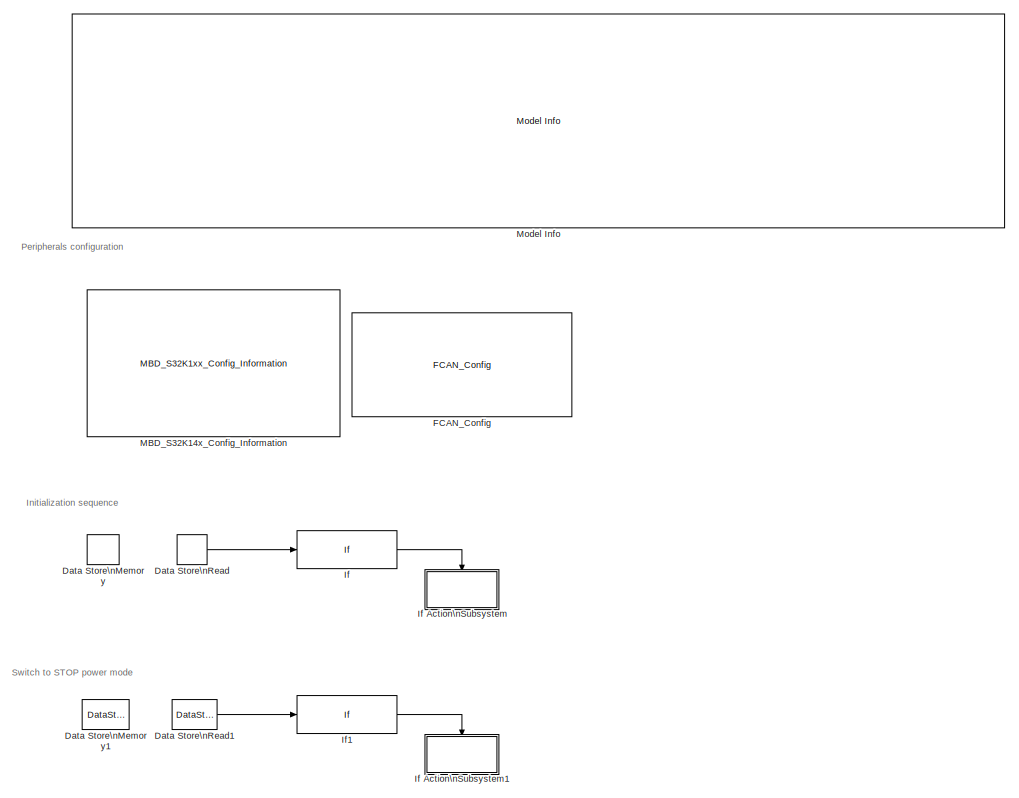
[diagram: root canvas - part 1/2, full width, top band]
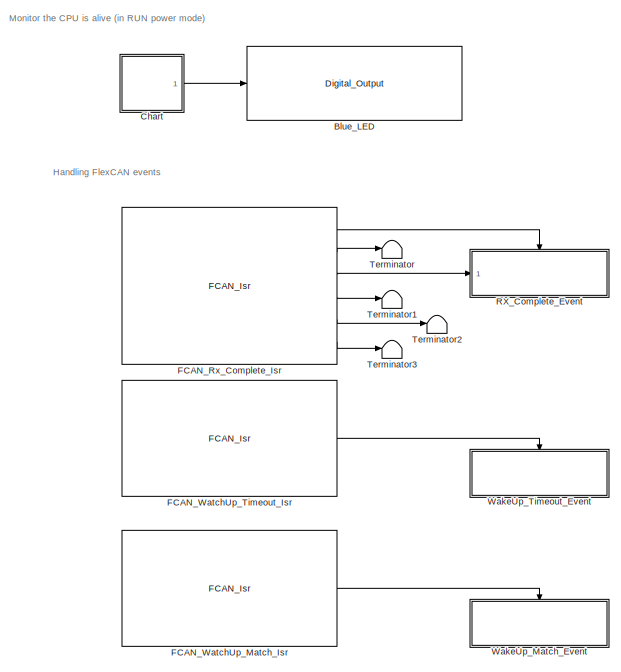
[diagram: root canvas - part 2/2, bottom left region]
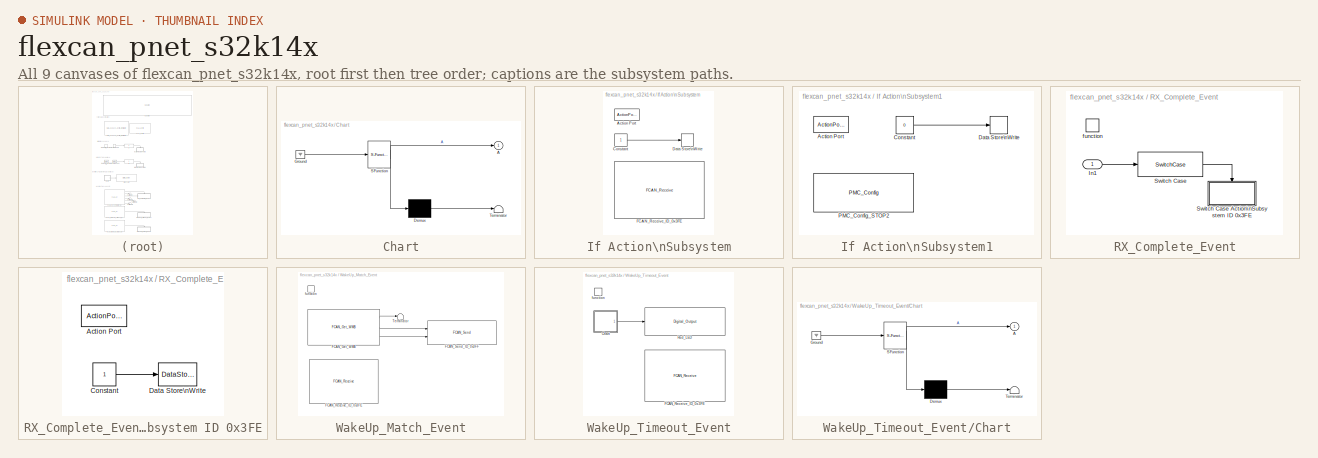
[diagram: thumbnail index - all 9 canvases of the model, root first then tree order]
MODEL flexcan_pnet_s32k14x
KIND model
CONFIG InitFcn = mbd_s32k_consistency_checks(bdroot(gcs));
BLOCK [Reference] Blue_LED  REF=mbd_s32k1xx_ec_toolbox/GPIO Blocks/Digital_Output
  Ports = [1]
  SID = 319
  SourceBlock = mbd_s32k1xx_ec_toolbox/GPIO Blocks/Digital_Output
  SourceType = gpio_s32k_output
  drive_strength = Low
  gpio_pin = PTD0: [PTD0 | Port D I/O]
  init_val = Low
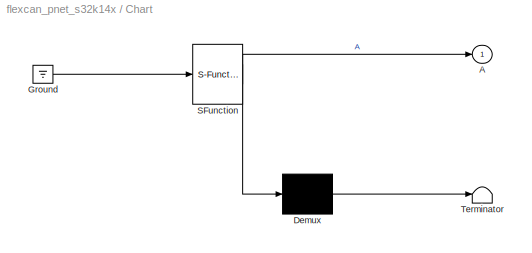
BLOCK [SubSystem] Chart
  ErrorFcn = Stateflow.Translate.translate
  PermitHierarchicalResolution = ExplicitOnly
  Ports = [0, 1]
  RequestExecContextInheritance = off
  SFBlockType = Chart
  SID = 318
  TreatAsAtomicUnit = on
  Variant = off
BLOCK [Outport] Chart/ A
  IconDisplay = Port number
  SID = 318::6
BLOCK [Demux] Chart/ Demux 
  Outputs = 1
  Ports = [1, 1]
  SID = 318::40
BLOCK [Ground] Chart/ Ground 
  SID = 318::42
BLOCK [S-Function] Chart/ SFunction 
  EnableBusSupport = off
  FunctionName = sf_sfun
  PortCounts = [1 2]
  Ports = [1, 2]
  SFcnIsStateOwnerBlock = off
  SFunctionDeploymentMode = off
  SID = 318::39
  Tag = Stateflow S-Function flexcan_pnet_s32k14x 1
BLOCK [Terminator] Chart/ Terminator 
  SID = 318::41
BLOCK [DataStoreMemory] Data Store\nMemory
  DataStoreName = Once
  OutDataTypeStr = uint32
  ReadBeforeWriteMsg = warning
  SID = 138
  ShowAdditionalParam = off
  WriteAfterReadMsg = warning
  WriteAfterWriteMsg = warning
BLOCK [DataStoreMemory] Data Store\nMemory1
  DataStoreName = StopFlag
  OutDataTypeStr = int32
  ReadBeforeWriteMsg = warning
  SID = 295
  ShowAdditionalParam = off
  WriteAfterReadMsg = warning
  WriteAfterWriteMsg = warning
BLOCK [DataStoreRead] Data Store\nRead
  DataStoreName = Once
  Ports = [0, 1]
  SID = 139
BLOCK [DataStoreRead] Data Store\nRead1
  DataStoreName = StopFlag
  Ports = [0, 1]
  SID = 296
BLOCK [Reference] FCAN_Config  REF=mbd_s32k1xx_ec_toolbox/Communication Blocks/CAN Blocks/FCAN_Config
  Ports = []
  Priority = 1
  SID = 2
  SourceBlock = mbd_s32k1xx_ec_toolbox/Communication Blocks/CAN Blocks/FCAN_Config
  SourceType = fcan_s32k_config
  bitrate = 500
  bitrate_adv_opts = on
  can_cbt_presdiv = 9
  can_cbt_propseg = 6
  can_cbt_pseg1 = 3
  can_cbt_pseg2 = 3
  can_cbt_rjw = 0
  can_clk_src = Peripheral clock
  can_fd_enable = off
  can_fifo_id_filter = {'0x0', '0x0', '0x0', '0x0', '0x0', '0x0', '0x0', '0x0'}
  can_fifo_id_filter_extended = off
  can_fifo_id_filter_remote = off
  can_fifo_id_format = A
  can_idfilter_extendedid = off
  can_idfilter_id1 = 0x3FD
  can_idfilter_id2 = 0x3FD
  can_idfilter_remoteframe = off
  can_idfilter_type = Match exact
  can_instance = 0
  can_match_timeout = 65535
  can_max_num_mb = 16
  can_mode = Normal mode
  can_multiple_matches_en = off
  can_num_id_filters = 8
  can_num_matches = 1
  can_payload = 8
  can_payloadfilter_dlchigh = 0
  can_payloadfilter_dlclow = 0
  can_payloadfilter_enable = off
  can_payloadfilter_payload1_b0 = 0
  can_payloadfilter_payload1_b1 = 0
  can_payloadfilter_payload1_b2 = 0
  can_payloadfilter_payload1_b3 = 0
  can_payloadfilter_payload1_b4 = 0
  can_payloadfilter_payload1_b5 = 0
  can_payloadfilter_payload1_b6 = 0
  can_payloadfilter_payload1_b7 = 0
  can_payloadfilter_payload2_b0 = 0
  can_payloadfilter_payload2_b1 = 0
  can_payloadfilter_payload2_b2 = 0
  can_payloadfilter_payload2_b3 = 0
  can_payloadfilter_payload2_b4 = 0
  can_payloadfilter_payload2_b5 = 0
  can_payloadfilter_payload2_b6 = 0
  can_payloadfilter_payload2_b7 = 0
  can_payloadfilter_type = Match exact
  can_pn_enable = on
  can_presdiv = 9
  can_propseg = 6
  can_pseg1 = 3
  can_pseg2 = 3
  can_rjw = 0
  can_rx = PTE4: [CAN0_RX | CAN Rx channel]
  can_rxfifo_enable = off
  can_timeout_en = on
  can_tx = PTE5: [CAN0_TX | CAN Tx Channel]
  can_wakeup_match = on
  can_wakeup_timeout = on
  show_adv_opts = on
BLOCK [Reference] FCAN_Rx_Complete_Isr  REF=mbd_s32k1xx_ec_toolbox/Communication Blocks/CAN Blocks/FCAN_Isr
  Ports = [0, 6]
  SID = 86
  SourceBlock = mbd_s32k1xx_ec_toolbox/Communication Blocks/CAN Blocks/FCAN_Isr
  SourceType = fcan_s32k_isr
  can_event = Rx Complete
  can_instance = 0
BLOCK [Reference] FCAN_WatchUp_Match_Isr  REF=mbd_s32k1xx_ec_toolbox/Communication Blocks/CAN Blocks/FCAN_Isr
  Ports = [0, 1]
  SID = 436
  SourceBlock = mbd_s32k1xx_ec_toolbox/Communication Blocks/CAN Blocks/FCAN_Isr
  SourceType = fcan_s32k_isr
  can_event = Wake Up Match
  can_instance = 0
BLOCK [Reference] FCAN_WatchUp_Timeout_Isr  REF=mbd_s32k1xx_ec_toolbox/Communication Blocks/CAN Blocks/FCAN_Isr
  Ports = [0, 1]
  SID = 432
  SourceBlock = mbd_s32k1xx_ec_toolbox/Communication Blocks/CAN Blocks/FCAN_Isr
  SourceType = fcan_s32k_isr
  can_event = Wake Up Timeout
  can_instance = 0
BLOCK [If] If
  IfExpression = u1 == 0
  Ports = [1, 1]
  SID = 144
  ShowElse = off
BLOCK [SubSystem] If Action\nSubsystem
  Ports = [0, 0, 0, 0, 0, 0, 0, 1]
  RequestExecContextInheritance = off
  SID = 145
  TreatAsAtomicUnit = on
  Variant = off
BLOCK [ActionPort] If Action\nSubsystem/Action Port
  SID = 147
BLOCK [Constant] If Action\nSubsystem/Constant
  OutDataTypeStr = uint32
  SID = 142
BLOCK [DataStoreWrite] If Action\nSubsystem/Data Store\nWrite
  DataStoreName = Once
  Ports = [1]
  SID = 141
BLOCK [Reference] If Action\nSubsystem/FCAN_Receive_ID_0x3FE  REF=mbd_s32k1xx_ec_toolbox/Communication Blocks/CAN Blocks/FCAN_Receive
  Ports = []
  SID = 197
  SourceBlock = mbd_s32k1xx_ec_toolbox/Communication Blocks/CAN Blocks/FCAN_Receive
  SourceType = fcan_s32k_receive
  can_extended_id = off
  can_fd_enable = off
  can_id = 3FE
  can_instance = 0
  can_is_remote = off
  can_mb_idx = 14
  can_mode = Non-blocking
  can_msg_mask = FFFFFFFF
  can_timeout_ms = 0
  can_use_rxfifo = off
  show_adv_opts = off
BLOCK [SubSystem] If Action\nSubsystem1
  Ports = [0, 0, 0, 0, 0, 0, 0, 1]
  RequestExecContextInheritance = off
  SID = 298
  TreatAsAtomicUnit = on
  Variant = off
BLOCK [ActionPort] If Action\nSubsystem1/Action Port
  SID = 299
BLOCK [Constant] If Action\nSubsystem1/Constant
  OutDataTypeStr = int32
  SID = 315
  Value = 0
BLOCK [DataStoreWrite] If Action\nSubsystem1/Data Store\nWrite
  DataStoreName = StopFlag
  Ports = [1]
  SID = 316
BLOCK [Reference] If Action\nSubsystem1/PMC_Config_STOP2  REF=mbd_s32k1xx_ec_toolbox/Core and System Blocks/PMC Blocks/PMC_Config
  Ports = []
  SID = 289
  SourceBlock = mbd_s32k1xx_ec_toolbox/Core and System Blocks/PMC Blocks/PMC_Config
  SourceType = pmc_s32k_config
  callback_after = off
  callback_before = off
  callback_before_after = off
  power_mode = Stop System clock and keep Bus clock running (STOP2)
  show_adv_opts = on
  sleep_on_exit = off
BLOCK [If] If1
  IfExpression = u1 == 1
  Ports = [1, 1]
  SID = 297
  ShowElse = off
BLOCK [Reference] MBD_S32K14x_Config_Information  REF=mbd_s32k1xx_ec_toolbox/MBD_S32K1xx_Config_Information
  ADC_PcrCheckEnDis = on
  AMMCLIB_PcrCheckEnDis = on
  CMP_PcrCheckEnDis = on
  CSEc_PcrCheckEnDis = on
  ConfigParams_PcrCheckEnDis = on
  FM_PcrCheckEnDis = on
  FTM_Dual_Edge_Inputs_PcrCheckEnDis = on
  FTM_Hall_Sensor_Inputs_PcrCheckEnDis = on
  FTM_Input_Edge_Inputs_PcrCheckEnDis = on
  FTM_PWM_PcrCheckEnDis = on
  FTM_Quadrature_Inputs_PcrCheckEnDis = on
  FlexCAN_PcrCheckEnDis = on
  FlexIO_PcrCheckEnDis = on
  GPIO_InputPcrCheckEnDis = on
  GPIO_OutputPcrCheckEnDis = on
  LIN_PcrCheckEnDis = on
  LPI2C_PcrCheckEnDis = on
  LPSPI_PcrCheckEnDis = on
  LPTMR_PcrCheckEnDis = on
  LPUART_PcrCheckEnDis = on
  ModelRef_PcrCheckEnDis = on
  PDB0_PcrCheckEnDis = on
  PIT_PcrCheckEnDis = on
  Ports = []
  Profile_PcrCheckEnDis = on
  RTC_PcrCheckEnDis = on
  SBC_PcrCheckEnDis = on
  SID = 447
  SourceBlock = mbd_s32k1xx_ec_toolbox/MBD_S32K1xx_Config_Information
  SourceType = MBDTBX_EC_S32K
  WDOG_PcrCheckEnDis = on
  config_params = []
  disp_str = Target : S32K144-64KB_SRAM\nPackage : 100-pin\nSystem clock : 80 MHz\nXTAL clock : External 8 MHz\nCompiler : IAR\nTarget Type : FLASH\nDownload Code after build : off\nStep Tick Interrupt Priority : 15
  ds_import_enable = on
  eDMA_PcrCheckEnDis = on
  gcc_target_assemble_opts = -mcpu=cortex-m4 -mthumb -mfloat-abi=hard -mfpu=fpv4-sp-d16 -g
  gcc_target_compile_opts = -mcpu=cortex-m4 -mthumb -mfloat-abi=hard -mfpu=fpv4-sp-d16 -O1 -g -gstrict-dwarf
  gcc_target_default_lcf = on
  gcc_target_link_opts = -mcpu=cortex-m4 -mthumb -mfloat-abi=hard -mfpu=fpv4-sp-d16
  gcc_target_user_lcf = S32K144_64_flash.ld
  ghs_target_assemble_opts = -cpu=cortexm4f -fpu=vfpv4_d16
  ghs_target_compile_opts = -cpu=cortexm4f -thumb -DARM_MATH_CM4 -fpu=vfpv4_d16 -fsingle -Ogeneral -Wundef -Wimplicit-int -Wshadow -Wtrigraphs --no_commons --gnu_asm -gnu99 -gdwarf-2 -G
  ghs_target_default_lcf = on
  ghs_target_link_opts = -cpu=cortexm4f -thumb -fpu=vfpv4_d16
  ghs_target_user_lcf = S32K144_64_flash.ld
  iar_target_assemble_opts = --cpu Cortex-M4F --thumb --fpu VFPv4_sp
  iar_target_compile_opts = --cpu=Cortex-M4F --thumb --fpu=VFPv4_sp -Ol -e --debug --dlib_config normal
  iar_target_default_lcf = on
  iar_target_link_opts = --no_exceptions --vfe --inline
  iar_target_user_lcf = S32K144_64_flash.icf
  mbdt_ver = 0
  mcu_steptick_prio = 15
  mcu_steptick_timer = LPIT Channel 0
  mcu_system_clock_freq = 80
  mcu_target_name = S32K144
  mcu_target_package = 100-LQFP
  mcu_target_sram_size = 64KB
  mcu_xtal_freq = External 8
  pil_download_enable = off
  pil_download_rate = 57600
  pil_opensda_drive = Custom
  pil_opensda_drive_custom = D
  pil_uart_instance = 0
  pil_uart_rx = PTA2: [LPUART0_RX | Receive]
  pil_uart_tx = PTA3: [LPUART0_TX | Transmit]
  rbl_com_port = Custom
  rbl_com_port_custom = COM1
  rbl_download_enable = off
  rbl_download_interface = OpenSDA
  rbl_restart_request = off
  rbl_start_delay = 5000000
  target_compiler = GCC
  target_memory = FLASH
BLOCK [Reference] Model Info  REF=simulink/Model-Wide\nUtilities/Model Info
  DisplayStringWithTags = Model Name: %<ModelName>\n\nDescription: %<Description>
  Frame = off
  HorizontalTextAlignment = Left
  LeftAlignmentValue = 0.02
  MaskDisplayString = Model Name: flexcan_pnet_s32k14x\\n\\nDescription: This model tests the FlexCAN Pretended Networking.\\nBlue LED (PTD0) is toggled continuosly in RUN power mode.\\nSending a message with ID 0x3FE will switch the CPU from RUN mode to STOP2. Blue LED will freeze.\\nSending a message with ID 0x3FD will wake up the CPU into RUN mode. Blue LED will resume to turn on-off.\\nOn Wake Up Match event the me...<+395ch>
  Ports = []
  SID = 74
  SourceBlock = simulink/Model-Wide\nUtilities/Model Info
  SourceProductBaseCode = SL
  SourceProductName = Simulink
  SourceType = CMBlock
BLOCK [SubSystem] RX_Complete_Event
  Ports = [1, 0, 0, 1]
  RTWSystemCode = Nonreusable function
  RequestExecContextInheritance = off
  SID = 160
  TreatAsAtomicUnit = on
  Variant = off
BLOCK [Inport] RX_Complete_Event/In1
  IconDisplay = Port number
  SID = 175
BLOCK [SwitchCase] RX_Complete_Event/Switch Case
  CaseConditions = {hex2dec('3FE')}
  Ports = [1, 1]
  SID = 90
  ShowDefaultCase = off
BLOCK [SubSystem] RX_Complete_Event/Switch Case Action\nSubsystem ID 0x3FE
  Ports = [0, 0, 0, 0, 0, 0, 0, 1]
  RequestExecContextInheritance = off
  SID = 198
  TreatAsAtomicUnit = on
  Variant = off
BLOCK [ActionPort] RX_Complete_Event/Switch Case Action\nSubsystem ID 0x3FE/Action Port
  SID = 199
BLOCK [Constant] RX_Complete_Event/Switch Case Action\nSubsystem ID 0x3FE/Constant
  OutDataTypeStr = int32
  SID = 287
BLOCK [DataStoreWrite] RX_Complete_Event/Switch Case Action\nSubsystem ID 0x3FE/Data Store\nWrite
  DataStoreName = StopFlag
  Ports = [1]
  SID = 286
BLOCK [TriggerPort] RX_Complete_Event/function
  Ports = []
  SID = 161
  StatesWhenEnabling = held
  TriggerType = function-call
  VariantControl = Variant
BLOCK [Terminator] Terminator
  SID = 394
BLOCK [Terminator] Terminator1
  SID = 393
BLOCK [Terminator] Terminator2
  SID = 392
BLOCK [Terminator] Terminator3
  SID = 446
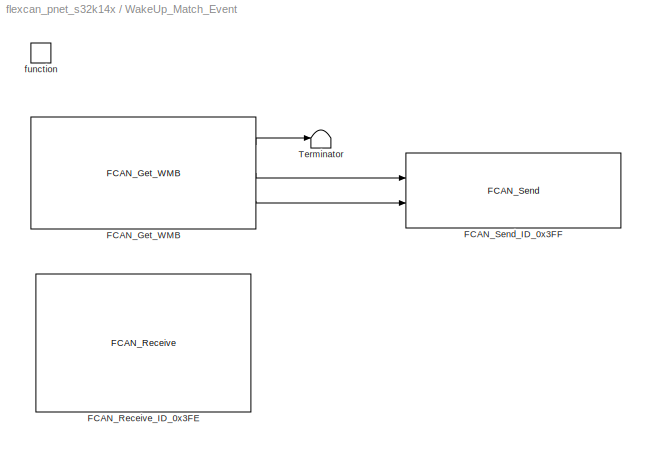
BLOCK [SubSystem] WakeUp_Match_Event
  Ports = [0, 0, 0, 1]
  RTWSystemCode = Nonreusable function
  RequestExecContextInheritance = off
  SID = 245
  TreatAsAtomicUnit = on
  Variant = off
BLOCK [Reference] WakeUp_Match_Event/FCAN_Get_WMB  REF=mbd_s32k1xx_ec_toolbox/Communication Blocks/CAN Blocks/FCAN_Get_WMB
  Ports = [0, 3]
  SID = 262
  SourceBlock = mbd_s32k1xx_ec_toolbox/Communication Blocks/CAN Blocks/FCAN_Get_WMB
  SourceType = fcan_s32k_get_wmb
  can_instance = 0
  can_wmb_idx = 0
BLOCK [Reference] WakeUp_Match_Event/FCAN_Receive_ID_0x3FE  REF=mbd_s32k1xx_ec_toolbox/Communication Blocks/CAN Blocks/FCAN_Receive
  Ports = []
  SID = 439
  SourceBlock = mbd_s32k1xx_ec_toolbox/Communication Blocks/CAN Blocks/FCAN_Receive
  SourceType = fcan_s32k_receive
  can_extended_id = off
  can_fd_enable = off
  can_id = 3FE
  can_instance = 0
  can_is_remote = off
  can_mb_idx = 14
  can_mode = Non-blocking
  can_msg_mask = FFFFFFFF
  can_timeout_ms = 0
  can_use_rxfifo = off
  show_adv_opts = off
BLOCK [Reference] WakeUp_Match_Event/FCAN_Send_ID_0x3FF  REF=mbd_s32k1xx_ec_toolbox/Communication Blocks/CAN Blocks/FCAN_Send
  Ports = [2]
  Priority = 2
  SID = 378
  SourceBlock = mbd_s32k1xx_ec_toolbox/Communication Blocks/CAN Blocks/FCAN_Send
  SourceType = fcan_s32k_send
  can_enable_brs = off
  can_extended_id = off
  can_fd_enable = off
  can_fd_padding = 0
  can_id = 3FF
  can_instance = 0
  can_is_remote = off
  can_mb_idx = 15
  can_mode = Non-blocking
  can_timeout_ms = 0
  show_adv_opts = off
BLOCK [Terminator] WakeUp_Match_Event/Terminator
  SID = 437
BLOCK [TriggerPort] WakeUp_Match_Event/function
  Ports = []
  SID = 246
  StatesWhenEnabling = held
  TriggerType = function-call
  VariantControl = Variant
BLOCK [SubSystem] WakeUp_Timeout_Event
  Ports = [0, 0, 0, 1]
  RTWSystemCode = Nonreusable function
  RequestExecContextInheritance = off
  SID = 230
  TreatAsAtomicUnit = on
  Variant = off
BLOCK [SubSystem] WakeUp_Timeout_Event/Chart
  ErrorFcn = Stateflow.Translate.translate
  PermitHierarchicalResolution = ExplicitOnly
  Ports = [0, 1]
  RequestExecContextInheritance = off
  SFBlockType = Chart
  SID = 260
  TreatAsAtomicUnit = on
  Variant = off
BLOCK [Outport] WakeUp_Timeout_Event/Chart/ A
  IconDisplay = Port number
  SID = 260::6
BLOCK [Demux] WakeUp_Timeout_Event/Chart/ Demux 
  Outputs = 1
  Ports = [1, 1]
  SID = 260::40
BLOCK [Ground] WakeUp_Timeout_Event/Chart/ Ground 
  SID = 260::42
BLOCK [S-Function] WakeUp_Timeout_Event/Chart/ SFunction 
  EnableBusSupport = off
  FunctionName = sf_sfun
  PortCounts = [1 2]
  Ports = [1, 2]
  SFcnIsStateOwnerBlock = off
  SFunctionDeploymentMode = off
  SID = 260::39
  Tag = Stateflow S-Function flexcan_pnet_s32k14x 6
BLOCK [Terminator] WakeUp_Timeout_Event/Chart/ Terminator 
  SID = 260::41
BLOCK [Reference] WakeUp_Timeout_Event/FCAN_Receive_ID_0x3FE  REF=mbd_s32k1xx_ec_toolbox/Communication Blocks/CAN Blocks/FCAN_Receive
  Ports = []
  SID = 438
  SourceBlock = mbd_s32k1xx_ec_toolbox/Communication Blocks/CAN Blocks/FCAN_Receive
  SourceType = fcan_s32k_receive
  can_extended_id = off
  can_fd_enable = off
  can_id = 3FE
  can_instance = 0
  can_is_remote = off
  can_mb_idx = 14
  can_mode = Non-blocking
  can_msg_mask = FFFFFFFF
  can_timeout_ms = 0
  can_use_rxfifo = off
  show_adv_opts = off
BLOCK [Reference] WakeUp_Timeout_Event/Red_LED  REF=mbd_s32k1xx_ec_toolbox/GPIO Blocks/Digital_Output
  Ports = [1]
  SID = 261
  SourceBlock = mbd_s32k1xx_ec_toolbox/GPIO Blocks/Digital_Output
  SourceType = gpio_s32k_output
  drive_strength = Low
  gpio_pin = PTD15: [PTD15 | Port D I/O]
  init_val = Low
BLOCK [TriggerPort] WakeUp_Timeout_Event/function
  Ports = []
  SID = 231
  StatesWhenEnabling = held
  TriggerType = function-call
  VariantControl = Variant
ANNOTATION (root): \n \n
ANNOTATION (root): Handling FlexCAN events
ANNOTATION (root): Initialization sequence
ANNOTATION (root): Monitor the CPU is alive (in RUN power mode)
ANNOTATION (root): Peripherals configuration
ANNOTATION (root): Switch to STOP power mode
LINE Chart/ Demux :1 -> Chart/ Terminator :1
LINE Chart/ Ground :1 -> Chart/ SFunction :1
LINE Chart/ SFunction :1 -> Chart/ Demux :1
LINE Chart/ SFunction :2 -> Chart/ A:1
LINE Chart:1 -> Blue_LED:1
LINE Data Store\nRead1:1 -> If1:1
LINE Data Store\nRead:1 -> If:1
LINE FCAN_Rx_Complete_Isr:1 -> RX_Complete_Event:trigger
LINE FCAN_Rx_Complete_Isr:2 -> Terminator:1
LINE FCAN_Rx_Complete_Isr:3 -> RX_Complete_Event:1
LINE FCAN_Rx_Complete_Isr:4 -> Terminator1:1
LINE FCAN_Rx_Complete_Isr:5 -> Terminator2:1
LINE FCAN_Rx_Complete_Isr:6 -> Terminator3:1
LINE FCAN_WatchUp_Match_Isr:1 -> WakeUp_Match_Event:trigger
LINE FCAN_WatchUp_Timeout_Isr:1 -> WakeUp_Timeout_Event:trigger
LINE If Action\nSubsystem/Constant:1 -> If Action\nSubsystem/Data Store\nWrite:1
LINE If Action\nSubsystem1/Constant:1 -> If Action\nSubsystem1/Data Store\nWrite:1
LINE If1:1 -> If Action\nSubsystem1:ifaction
LINE If:1 -> If Action\nSubsystem:ifaction
LINE RX_Complete_Event/In1:1 -> RX_Complete_Event/Switch Case:1
LINE RX_Complete_Event/Switch Case Action\nSubsystem ID 0x3FE/Constant:1 -> RX_Complete_Event/Switch Case Action\nSubsystem ID 0x3FE/Data Store\nWrite:1
LINE RX_Complete_Event/Switch Case:1 -> RX_Complete_Event/Switch Case Action\nSubsystem ID 0x3FE:ifaction
LINE WakeUp_Match_Event/FCAN_Get_WMB:1 -> WakeUp_Match_Event/Terminator:1
LINE WakeUp_Match_Event/FCAN_Get_WMB:2 -> WakeUp_Match_Event/FCAN_Send_ID_0x3FF:1
LINE WakeUp_Match_Event/FCAN_Get_WMB:3 -> WakeUp_Match_Event/FCAN_Send_ID_0x3FF:2
LINE WakeUp_Timeout_Event/Chart/ Demux :1 -> WakeUp_Timeout_Event/Chart/ Terminator :1
LINE WakeUp_Timeout_Event/Chart/ Ground :1 -> WakeUp_Timeout_Event/Chart/ SFunction :1
LINE WakeUp_Timeout_Event/Chart/ SFunction :1 -> WakeUp_Timeout_Event/Chart/ Demux :1
LINE WakeUp_Timeout_Event/Chart/ SFunction :2 -> WakeUp_Timeout_Event/Chart/ A:1
LINE WakeUp_Timeout_Event/Chart:1 -> WakeUp_Timeout_Event/Red_LED:1
CHART Chart states=2 transitions=3
  STATE_LABEL 'A'
  STATE_LABEL 'A1'
CHART WakeUp_Timeout_Event/Chart states=2 transitions=3
  STATE_LABEL 'A'
  STATE_LABEL 'A1'
